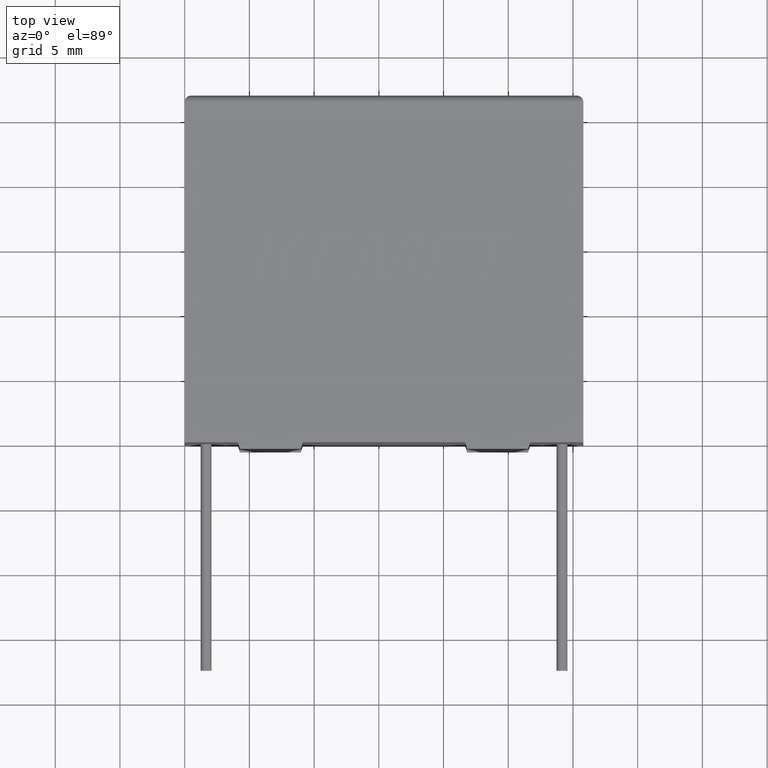
[diagram: clean part render]
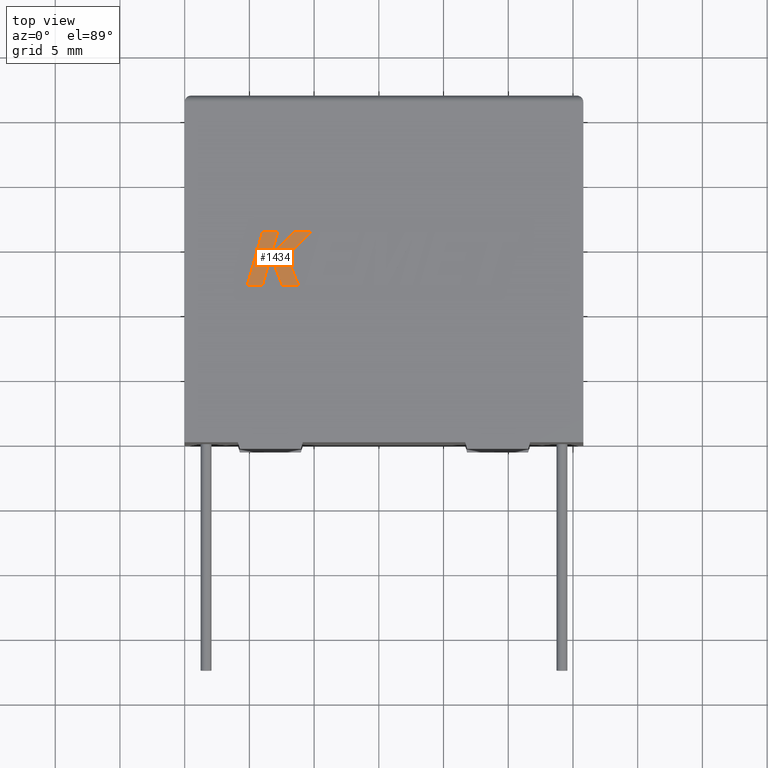
[diagram: same view with one face highlighted and labeled with its STEP entity id]
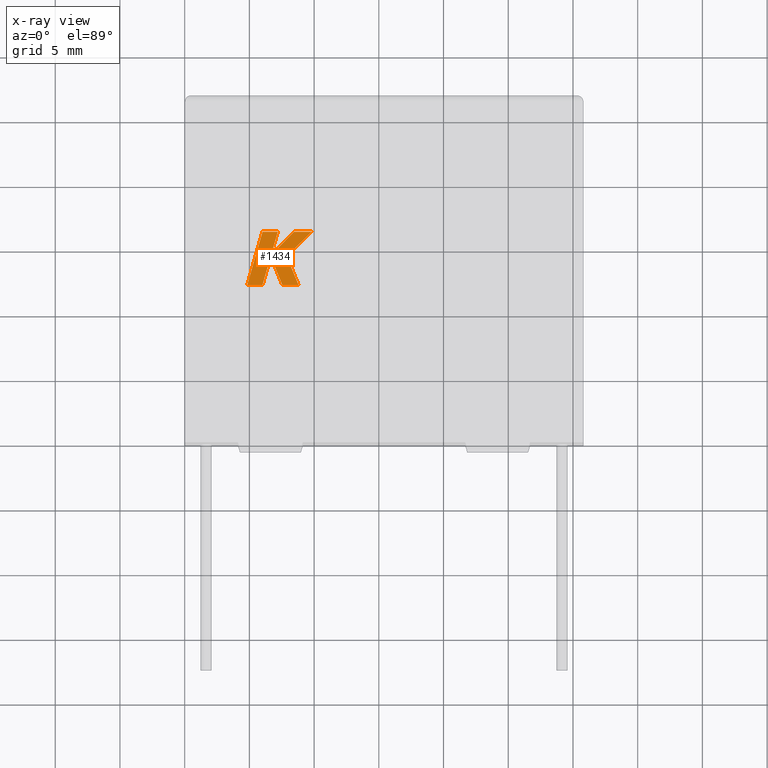
[diagram: x-ray of the same camera — body ghosted, the highlighted face saturated]
A machine part, top view. The second image highlights one B-rep face of the part: STEP entity #1434.
The next image is the same camera in x-ray: the body ghosted, the highlighted face saturated — about 0% of this face is hidden behind the body in this view.
In plain terms, the highlighted planar face has unit normal (0, 0, -1).
Its self-contained STEP definition (entity closure, byte-faithful):
#38 = CARTESIAN_POINT ( 'NONE',  ( 8.447148222131584600, 16.26147083597947000, 16.80500000000000300 ) ) ;
#90 = EDGE_CURVE ( 'NONE', #286, #760, #192, .T. ) ;
#137 = ORIENTED_EDGE ( 'NONE', *, *, #2032, .T. ) ;
#153 = LINE ( 'NONE', #837, #2008 ) ;
#183 = VECTOR ( 'NONE', #2592, 1000.000000000000100 ) ;
#192 = LINE ( 'NONE', #2511, #1368 ) ;
#242 = DIRECTION ( 'NONE',  ( -1.000000000000000000, -0.0000000000000000000, -0.0000000000000000000 ) ) ;
#273 = EDGE_CURVE ( 'NONE', #904, #286, #153, .T. ) ;
#285 = CARTESIAN_POINT ( 'NONE',  ( 7.876930521062140800, 14.36945578713391200, 16.80500000000000300 ) ) ;
#286 = VERTEX_POINT ( 'NONE', #2070 ) ;
#330 = VERTEX_POINT ( 'NONE', #1581 ) ;
#357 = LINE ( 'NONE', #3021, #2873 ) ;
#372 = CARTESIAN_POINT ( 'NONE',  ( 7.549049051065146900, 12.12163999999987100, 16.80500000000000300 ) ) ;
#419 = VERTEX_POINT ( 'NONE', #853 ) ;
#449 = VECTOR ( 'NONE', #568, 1000.000000000000000 ) ;
#454 = VERTEX_POINT ( 'NONE', #1408 ) ;
#459 = DIRECTION ( 'NONE',  ( 1.000000000000000000, -1.089306025555442600E-013, 0.0000000000000000000 ) ) ;
#485 = CARTESIAN_POINT ( 'NONE',  ( 7.876930521062140800, 14.36945578713391200, 16.80500000000000300 ) ) ;
#520 = ORIENTED_EDGE ( 'NONE', *, *, #1006, .T. ) ;
#531 = DIRECTION ( 'NONE',  ( 0.0000000000000000000, 0.0000000000000000000, -1.000000000000000000 ) ) ;
#568 = DIRECTION ( 'NONE',  ( -0.3829140317376951700, 0.9237839814038687500, 0.0000000000000000000 ) ) ;
#570 = ORIENTED_EDGE ( 'NONE', *, *, #273, .T. ) ;
#583 = DIRECTION ( 'NONE',  ( -0.7059037656364501900, -0.7083077534943971200, -0.0000000000000000000 ) ) ;
#608 = EDGE_CURVE ( 'NONE', #949, #2177, #819, .T. ) ;
#629 = EDGE_CURVE ( 'NONE', #330, #949, #3171, .T. ) ;
#667 = ORIENTED_EDGE ( 'NONE', *, *, #1335, .T. ) ;
#712 = CARTESIAN_POINT ( 'NONE',  ( 8.447148222131584600, 16.26147083597947000, 16.80500000000000300 ) ) ;
#760 = VERTEX_POINT ( 'NONE', #2749 ) ;
#780 = DIRECTION ( 'NONE',  ( 0.7145695586381818300, 0.6995643972270416700, 0.0000000000000000000 ) ) ;
#819 = LINE ( 'NONE', #1724, #1416 ) ;
#837 = CARTESIAN_POINT ( 'NONE',  ( 6.687755991453454600, 14.49608691384733200, 16.80500000000000300 ) ) ;
#853 = CARTESIAN_POINT ( 'NONE',  ( 7.549049051065146900, 12.12163999999987100, 16.80500000000000300 ) ) ;
#904 = VERTEX_POINT ( 'NONE', #38 ) ;
#934 = EDGE_CURVE ( 'NONE', #419, #454, #2894, .T. ) ;
#949 = VERTEX_POINT ( 'NONE', #2326 ) ;
#1006 = EDGE_CURVE ( 'NONE', #2177, #2687, #1966, .T. ) ;
#1009 = LINE ( 'NONE', #285, #449 ) ;
#1073 = DIRECTION ( 'NONE',  ( 1.000000000000000000, 0.0000000000000000000, 0.0000000000000000000 ) ) ;
#1180 = ORIENTED_EDGE ( 'NONE', *, *, #90, .T. ) ;
#1243 = VERTEX_POINT ( 'NONE', #485 ) ;
#1276 = DIRECTION ( 'NONE',  ( 0.2755520632520600000, 0.9612861490927313600, 0.0000000000000000000 ) ) ;
#1282 = ORIENTED_EDGE ( 'NONE', *, *, #2392, .T. ) ;
#1335 = EDGE_CURVE ( 'NONE', #2528, #904, #2117, .T. ) ;
#1368 = VECTOR ( 'NONE', #1276, 999.9999999999998900 ) ;
#1402 = DIRECTION ( 'NONE',  ( -1.000000000000000000, -0.0000000000000000000, -0.0000000000000000000 ) ) ;
#1408 = CARTESIAN_POINT ( 'NONE',  ( 8.808663721660728600, 12.12163999999987100, 16.80500000000000300 ) ) ;
#1416 = VECTOR ( 'NONE', #459, 1000.000000000000000 ) ;
#1434 = ADVANCED_FACE ( 'NONE', ( #2165 ), #1569, .F. ) ;
#1435 = CARTESIAN_POINT ( 'NONE',  ( 6.015050159169699200, 16.26147083597947000, 16.80500000000000300 ) ) ;
#1472 = VECTOR ( 'NONE', #2863, 1000.000000000000100 ) ;
#1481 = ORIENTED_EDGE ( 'NONE', *, *, #608, .T. ) ;
#1569 = PLANE ( 'NONE',  #2730 ) ;
#1581 = CARTESIAN_POINT ( 'NONE',  ( 6.015050159169699200, 16.26147083597947000, 16.80500000000000300 ) ) ;
#1586 = CARTESIAN_POINT ( 'NONE',  ( 9.809527954192502000, 16.26147083597947000, 16.80500000000000300 ) ) ;
#1605 = EDGE_CURVE ( 'NONE', #760, #330, #1609, .T. ) ;
#1609 = LINE ( 'NONE', #1435, #2509 ) ;
#1688 = ORIENTED_EDGE ( 'NONE', *, *, #934, .T. ) ;
#1724 = CARTESIAN_POINT ( 'NONE',  ( 6.002512919047821200, 12.12163999999987100, 16.80500000000000300 ) ) ;
#1763 = ORIENTED_EDGE ( 'NONE', *, *, #629, .T. ) ;
#1819 = CARTESIAN_POINT ( 'NONE',  ( 0.1398049369151516700, -10.84998203595309500, 16.80500000000000300 ) ) ;
#1920 = VECTOR ( 'NONE', #242, 1000.000000000000000 ) ;
#1966 = LINE ( 'NONE', #3072, #183 ) ;
#2008 = VECTOR ( 'NONE', #583, 1000.000000000000100 ) ;
#2032 = EDGE_CURVE ( 'NONE', #454, #1243, #1009, .T. ) ;
#2037 = EDGE_LOOP ( 'NONE', ( #1763, #1481, #520, #1282, #1688, #137, #2202, #667, #570, #1180, #2405 ) ) ;
#2062 = LINE ( 'NONE', #372, #1472 ) ;
#2070 = CARTESIAN_POINT ( 'NONE',  ( 6.687755991453454600, 14.49608691384733200, 16.80500000000000300 ) ) ;
#2117 = LINE ( 'NONE', #712, #1920 ) ;
#2144 = CARTESIAN_POINT ( 'NONE',  ( 6.646783391977328900, 14.36945578713386100, 16.80500000000000300 ) ) ;
#2165 = FACE_OUTER_BOUND ( 'NONE', #2037, .T. ) ;
#2177 = VERTEX_POINT ( 'NONE', #3125 ) ;
#2200 = DIRECTION ( 'NONE',  ( -0.2762033010252004700, -0.9610992334315862100, -0.0000000000000000000 ) ) ;
#2202 = ORIENTED_EDGE ( 'NONE', *, *, #2459, .T. ) ;
#2326 = CARTESIAN_POINT ( 'NONE',  ( 4.825334359999999400, 12.12163999999999900, 16.80500000000000300 ) ) ;
#2392 = EDGE_CURVE ( 'NONE', #2687, #419, #2062, .T. ) ;
#2405 = ORIENTED_EDGE ( 'NONE', *, *, #1605, .T. ) ;
#2459 = EDGE_CURVE ( 'NONE', #1243, #2528, #357, .T. ) ;
#2509 = VECTOR ( 'NONE', #1402, 1000.000000000000000 ) ;
#2511 = CARTESIAN_POINT ( 'NONE',  ( 7.193802169934901500, 16.26147083597947000, 16.80500000000000300 ) ) ;
#2519 = VECTOR ( 'NONE', #2200, 1000.000000000000000 ) ;
#2528 = VERTEX_POINT ( 'NONE', #1586 ) ;
#2547 = DIRECTION ( 'NONE',  ( -1.000000000000000000, 0.0000000000000000000, 0.0000000000000000000 ) ) ;
#2592 = DIRECTION ( 'NONE',  ( 0.2755265765475173900, 0.9612934544747535600, 0.0000000000000000000 ) ) ;
#2625 = VECTOR ( 'NONE', #1073, 1000.000000000000000 ) ;
#2664 = CARTESIAN_POINT ( 'NONE',  ( 4.825334359999999400, 12.12163999999999900, 16.80500000000000300 ) ) ;
#2687 = VERTEX_POINT ( 'NONE', #2144 ) ;
#2730 = AXIS2_PLACEMENT_3D ( 'NONE', #1819, #531, #2547 ) ;
#2749 = CARTESIAN_POINT ( 'NONE',  ( 7.193802169934901500, 16.26147083597947000, 16.80500000000000300 ) ) ;
#2863 = DIRECTION ( 'NONE',  ( 0.3725077383644744300, -0.9280290862136726400, 0.0000000000000000000 ) ) ;
#2873 = VECTOR ( 'NONE', #780, 1000.000000000000100 ) ;
#2894 = LINE ( 'NONE', #3108, #2625 ) ;
#3021 = CARTESIAN_POINT ( 'NONE',  ( 9.809527954192502000, 16.26147083597947000, 16.80500000000000300 ) ) ;
#3072 = CARTESIAN_POINT ( 'NONE',  ( 6.646783391977328900, 14.36945578713386100, 16.80500000000000300 ) ) ;
#3108 = CARTESIAN_POINT ( 'NONE',  ( 8.808663721660728600, 12.12163999999987100, 16.80500000000000300 ) ) ;
#3125 = CARTESIAN_POINT ( 'NONE',  ( 6.002512919047821200, 12.12163999999987100, 16.80500000000000300 ) ) ;
#3171 = LINE ( 'NONE', #2664, #2519 ) ;